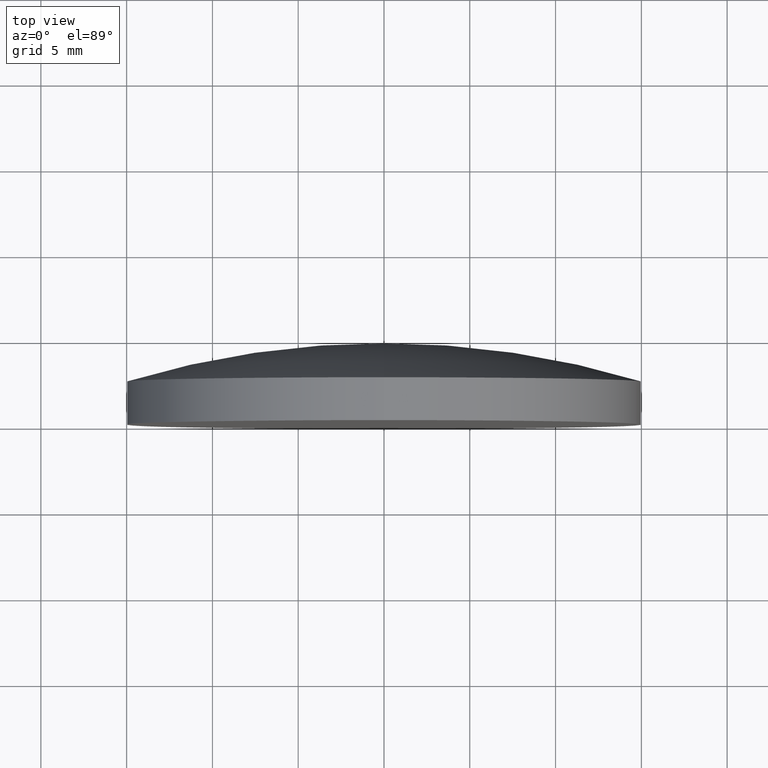
[diagram: clean part render]
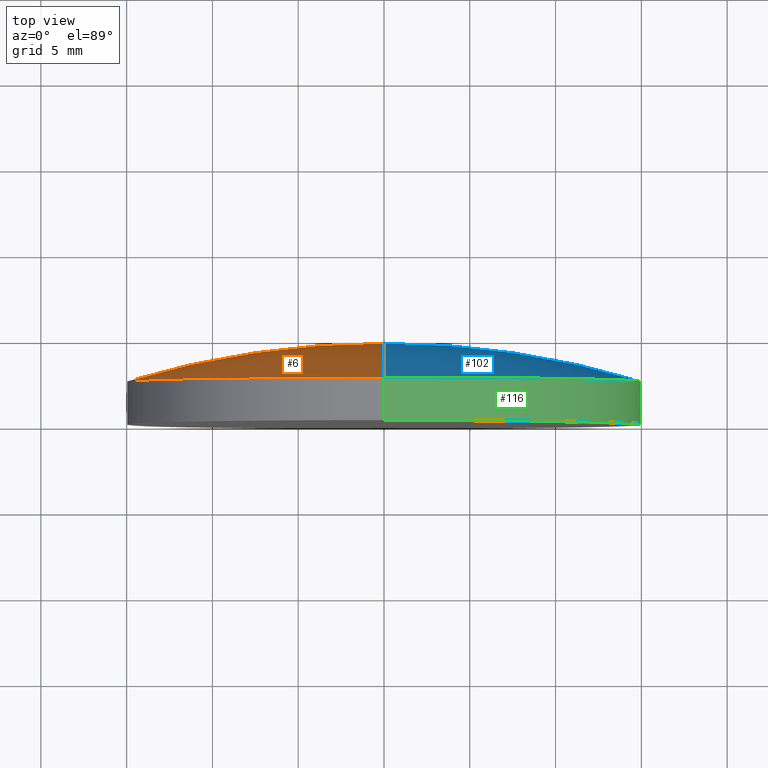
[diagram: same view with three faces highlighted in distinct colors, each labeled with its STEP entity id]
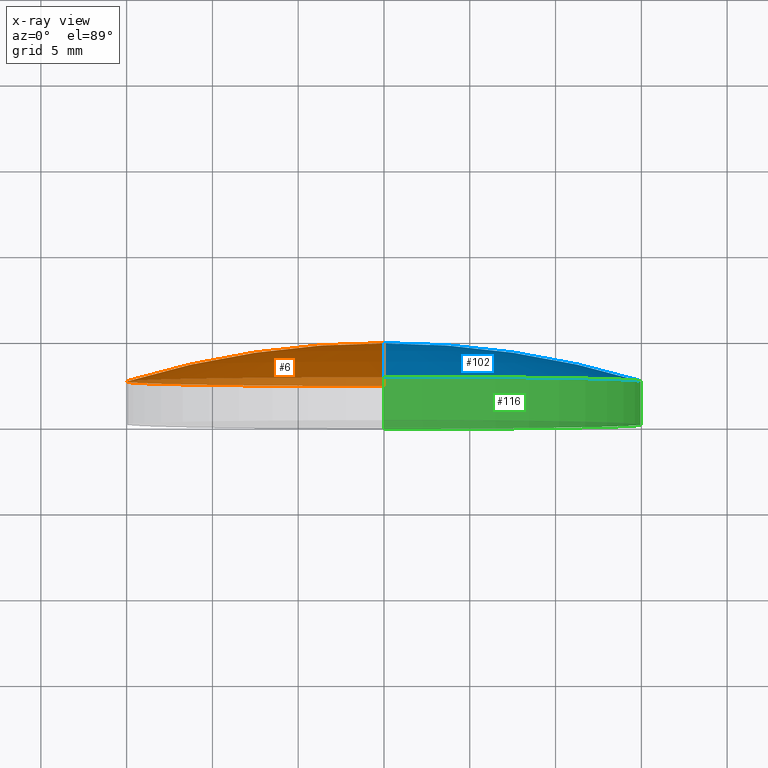
[diagram: x-ray of the same camera — body ghosted, the three highlighted faces saturated]
A machine part, top view with three faces highlighted in distinct colors.
The next image is the same camera in x-ray (body ghosted, the three faces saturated) — at least one of them is partly hidden behind the body in this view.
Their STEP definitions:

[orange] entity #6 — the highlighted toroidal blend (fillet) surface has major radius 0.0114 mm and minor (blend) radius 51.64 mm.
#6 = ADVANCED_FACE ( 'NONE', ( #199 ), #66, .T. ) ;
#23 = AXIS2_PLACEMENT_3D ( 'NONE', #58, #122, #109 ) ;
#31 = DIRECTION ( 'NONE',  ( 1.224646799147353207E-16, 0.000000000000000000, -1.000000000000000000 ) ) ;
#33 = CARTESIAN_POINT ( 'NONE',  ( 0.000000000000000000, -46.90999874539085113, 0.000000000000000000 ) ) ;
#36 = AXIS2_PLACEMENT_3D ( 'NONE', #45, #89, #43 ) ;
#43 = DIRECTION ( 'NONE',  ( 0.000000000000000000, 0.000000000000000000, 1.000000000000000000 ) ) ;
#45 = CARTESIAN_POINT ( 'NONE',  ( 0.000000000000000000, 2.499999999999998224, 0.000000000000000000 ) ) ;
#46 = ORIENTED_EDGE ( 'NONE', *, *, #171, .F. ) ;
#47 = VERTEX_POINT ( 'NONE', #135 ) ;
#52 = AXIS2_PLACEMENT_3D ( 'NONE', #111, #167, #31 ) ;
#58 = CARTESIAN_POINT ( 'NONE',  ( 0.000000000000000000, -46.90999874539085113, -0.01138314681478104495 ) ) ;
#62 = ORIENTED_EDGE ( 'NONE', *, *, #136, .T. ) ;
#66 = TOROIDAL_SURFACE ( 'NONE', #129, -0.01138314681478104495, 51.64000000000000057 ) ;
#70 = DIRECTION ( 'NONE',  ( -0.000000000000000000, 1.000000000000000000, -0.000000000000000000 ) ) ;
#89 = DIRECTION ( 'NONE',  ( -0.000000000000000000, 1.000000000000000000, -0.000000000000000000 ) ) ;
#109 = DIRECTION ( 'NONE',  ( 0.000000000000000000, 0.000000000000000000, 1.000000000000000000 ) ) ;
#111 = CARTESIAN_POINT ( 'NONE',  ( -1.394033431094599677E-18, -46.90999874539085113, 0.01138314681478104495 ) ) ;
#112 = VERTEX_POINT ( 'NONE', #123 ) ;
#118 = DIRECTION ( 'NONE',  ( 0.000000000000000000, 0.000000000000000000, 1.000000000000000000 ) ) ;
#122 = DIRECTION ( 'NONE',  ( -1.000000000000000000, 0.000000000000000000, 0.000000000000000000 ) ) ;
#123 = CARTESIAN_POINT ( 'NONE',  ( 1.836970198721029589E-15, 2.500000000000000444, -15.00000000000000178 ) ) ;
#127 = CIRCLE ( 'NONE', #36, 15.00000000000000000 ) ;
#129 = AXIS2_PLACEMENT_3D ( 'NONE', #33, #70, #118 ) ;
#132 = CIRCLE ( 'NONE', #52, 51.64000000000000057 ) ;
#135 = CARTESIAN_POINT ( 'NONE',  ( 0.000000000000000000, 2.500000000000000444, 15.00000000000000178 ) ) ;
#136 = EDGE_CURVE ( 'NONE', #47, #140, #189, .T. ) ;
#140 = VERTEX_POINT ( 'NONE', #181 ) ;
#141 = EDGE_LOOP ( 'NONE', ( #46, #185, #62 ) ) ;
#159 = EDGE_CURVE ( 'NONE', #112, #47, #127, .T. ) ;
#167 = DIRECTION ( 'NONE',  ( 1.000000000000000000, 0.000000000000000000, 1.224646799147353207E-16 ) ) ;
#171 = EDGE_CURVE ( 'NONE', #112, #140, #132, .T. ) ;
#181 = CARTESIAN_POINT ( 'NONE',  ( 0.000000000000000000, 4.730000000000000426, 0.000000000000000000 ) ) ;
#185 = ORIENTED_EDGE ( 'NONE', *, *, #159, .T. ) ;
#189 = CIRCLE ( 'NONE', #23, 51.64000000000000057 ) ;
#199 = FACE_OUTER_BOUND ( 'NONE', #141, .T. ) ;

[blue] entity #102 — the highlighted toroidal blend (fillet) surface has major radius 0.0114 mm and minor (blend) radius 51.64 mm.
#9 = TOROIDAL_SURFACE ( 'NONE', #99, -0.01138314681478104495, 51.64000000000000057 ) ;
#10 = DIRECTION ( 'NONE',  ( 0.000000000000000000, 0.000000000000000000, 1.000000000000000000 ) ) ;
#23 = AXIS2_PLACEMENT_3D ( 'NONE', #58, #122, #109 ) ;
#26 = EDGE_CURVE ( 'NONE', #47, #112, #151, .T. ) ;
#28 = AXIS2_PLACEMENT_3D ( 'NONE', #193, #54, #10 ) ;
#29 = ORIENTED_EDGE ( 'NONE', *, *, #171, .T. ) ;
#31 = DIRECTION ( 'NONE',  ( 1.224646799147353207E-16, 0.000000000000000000, -1.000000000000000000 ) ) ;
#38 = FACE_OUTER_BOUND ( 'NONE', #182, .T. ) ;
#47 = VERTEX_POINT ( 'NONE', #135 ) ;
#52 = AXIS2_PLACEMENT_3D ( 'NONE', #111, #167, #31 ) ;
#54 = DIRECTION ( 'NONE',  ( -0.000000000000000000, 1.000000000000000000, -0.000000000000000000 ) ) ;
#58 = CARTESIAN_POINT ( 'NONE',  ( 0.000000000000000000, -46.90999874539085113, -0.01138314681478104495 ) ) ;
#75 = ORIENTED_EDGE ( 'NONE', *, *, #136, .F. ) ;
#76 = ORIENTED_EDGE ( 'NONE', *, *, #26, .T. ) ;
#99 = AXIS2_PLACEMENT_3D ( 'NONE', #153, #150, #166 ) ;
#102 = ADVANCED_FACE ( 'NONE', ( #38 ), #9, .T. ) ;
#109 = DIRECTION ( 'NONE',  ( 0.000000000000000000, 0.000000000000000000, 1.000000000000000000 ) ) ;
#111 = CARTESIAN_POINT ( 'NONE',  ( -1.394033431094599677E-18, -46.90999874539085113, 0.01138314681478104495 ) ) ;
#112 = VERTEX_POINT ( 'NONE', #123 ) ;
#122 = DIRECTION ( 'NONE',  ( -1.000000000000000000, 0.000000000000000000, 0.000000000000000000 ) ) ;
#123 = CARTESIAN_POINT ( 'NONE',  ( 1.836970198721029589E-15, 2.500000000000000444, -15.00000000000000178 ) ) ;
#132 = CIRCLE ( 'NONE', #52, 51.64000000000000057 ) ;
#135 = CARTESIAN_POINT ( 'NONE',  ( 0.000000000000000000, 2.500000000000000444, 15.00000000000000178 ) ) ;
#136 = EDGE_CURVE ( 'NONE', #47, #140, #189, .T. ) ;
#140 = VERTEX_POINT ( 'NONE', #181 ) ;
#150 = DIRECTION ( 'NONE',  ( -0.000000000000000000, 1.000000000000000000, -0.000000000000000000 ) ) ;
#151 = CIRCLE ( 'NONE', #28, 15.00000000000000000 ) ;
#153 = CARTESIAN_POINT ( 'NONE',  ( 0.000000000000000000, -46.90999874539085113, 0.000000000000000000 ) ) ;
#166 = DIRECTION ( 'NONE',  ( 0.000000000000000000, 0.000000000000000000, 1.000000000000000000 ) ) ;
#167 = DIRECTION ( 'NONE',  ( 1.000000000000000000, 0.000000000000000000, 1.224646799147353207E-16 ) ) ;
#171 = EDGE_CURVE ( 'NONE', #112, #140, #132, .T. ) ;
#181 = CARTESIAN_POINT ( 'NONE',  ( 0.000000000000000000, 4.730000000000000426, 0.000000000000000000 ) ) ;
#182 = EDGE_LOOP ( 'NONE', ( #76, #29, #75 ) ) ;
#189 = CIRCLE ( 'NONE', #23, 51.64000000000000057 ) ;
#193 = CARTESIAN_POINT ( 'NONE',  ( 0.000000000000000000, 2.499999999999998224, 0.000000000000000000 ) ) ;

[green] entity #116 — the highlighted cylindrical surface (partial cylindrical patch) has radius 15 mm, axis along (-0, 1, -0).
#8 = DIRECTION ( 'NONE',  ( -0.000000000000000000, 1.000000000000000000, -0.000000000000000000 ) ) ;
#10 = DIRECTION ( 'NONE',  ( 0.000000000000000000, 0.000000000000000000, 1.000000000000000000 ) ) ;
#14 = CYLINDRICAL_SURFACE ( 'NONE', #174, 15.00000000000000000 ) ;
#15 = EDGE_LOOP ( 'NONE', ( #90, #125, #16, #200 ) ) ;
#16 = ORIENTED_EDGE ( 'NONE', *, *, #26, .F. ) ;
#26 = EDGE_CURVE ( 'NONE', #47, #112, #151, .T. ) ;
#27 = DIRECTION ( 'NONE',  ( -0.000000000000000000, 1.000000000000000000, -0.000000000000000000 ) ) ;
#28 = AXIS2_PLACEMENT_3D ( 'NONE', #193, #54, #10 ) ;
#39 = CARTESIAN_POINT ( 'NONE',  ( 1.836970198721029589E-15, -1.734723475976807094E-15, -15.00000000000000000 ) ) ;
#42 = EDGE_CURVE ( 'NONE', #60, #74, #147, .T. ) ;
#47 = VERTEX_POINT ( 'NONE', #135 ) ;
#54 = DIRECTION ( 'NONE',  ( -0.000000000000000000, 1.000000000000000000, -0.000000000000000000 ) ) ;
#60 = VERTEX_POINT ( 'NONE', #105 ) ;
#71 = DIRECTION ( 'NONE',  ( 0.000000000000000000, 0.000000000000000000, 1.000000000000000000 ) ) ;
#72 = CARTESIAN_POINT ( 'NONE',  ( 0.000000000000000000, 4.730000000000000426, 0.000000000000000000 ) ) ;
#73 = CARTESIAN_POINT ( 'NONE',  ( 0.000000000000000000, 4.730000000000000426, 15.00000000000000000 ) ) ;
#74 = VERTEX_POINT ( 'NONE', #39 ) ;
#79 = VECTOR ( 'NONE', #139, 1000.000000000000000 ) ;
#90 = ORIENTED_EDGE ( 'NONE', *, *, #42, .T. ) ;
#100 = EDGE_CURVE ( 'NONE', #74, #112, #119, .T. ) ;
#105 = CARTESIAN_POINT ( 'NONE',  ( 0.000000000000000000, -1.734723475976807094E-15, 15.00000000000000000 ) ) ;
#112 = VERTEX_POINT ( 'NONE', #123 ) ;
#116 = ADVANCED_FACE ( 'NONE', ( #195 ), #14, .T. ) ;
#119 = LINE ( 'NONE', #178, #186 ) ;
#120 = EDGE_CURVE ( 'NONE', #60, #47, #137, .T. ) ;
#123 = CARTESIAN_POINT ( 'NONE',  ( 1.836970198721029589E-15, 2.500000000000000444, -15.00000000000000178 ) ) ;
#125 = ORIENTED_EDGE ( 'NONE', *, *, #100, .T. ) ;
#135 = CARTESIAN_POINT ( 'NONE',  ( 0.000000000000000000, 2.500000000000000444, 15.00000000000000178 ) ) ;
#137 = LINE ( 'NONE', #73, #79 ) ;
#139 = DIRECTION ( 'NONE',  ( -0.000000000000000000, 1.000000000000000000, -0.000000000000000000 ) ) ;
#147 = CIRCLE ( 'NONE', #177, 15.00000000000000000 ) ;
#149 = DIRECTION ( 'NONE',  ( -0.000000000000000000, 1.000000000000000000, -0.000000000000000000 ) ) ;
#151 = CIRCLE ( 'NONE', #28, 15.00000000000000000 ) ;
#163 = CARTESIAN_POINT ( 'NONE',  ( 0.000000000000000000, -1.734723475976807094E-15, 0.000000000000000000 ) ) ;
#174 = AXIS2_PLACEMENT_3D ( 'NONE', #72, #27, #198 ) ;
#177 = AXIS2_PLACEMENT_3D ( 'NONE', #163, #8, #71 ) ;
#178 = CARTESIAN_POINT ( 'NONE',  ( 1.836970198721029589E-15, 4.730000000000000426, -15.00000000000000000 ) ) ;
#186 = VECTOR ( 'NONE', #149, 1000.000000000000000 ) ;
#193 = CARTESIAN_POINT ( 'NONE',  ( 0.000000000000000000, 2.499999999999998224, 0.000000000000000000 ) ) ;
#195 = FACE_OUTER_BOUND ( 'NONE', #15, .T. ) ;
#198 = DIRECTION ( 'NONE',  ( 0.000000000000000000, 0.000000000000000000, 1.000000000000000000 ) ) ;
#200 = ORIENTED_EDGE ( 'NONE', *, *, #120, .F. ) ;